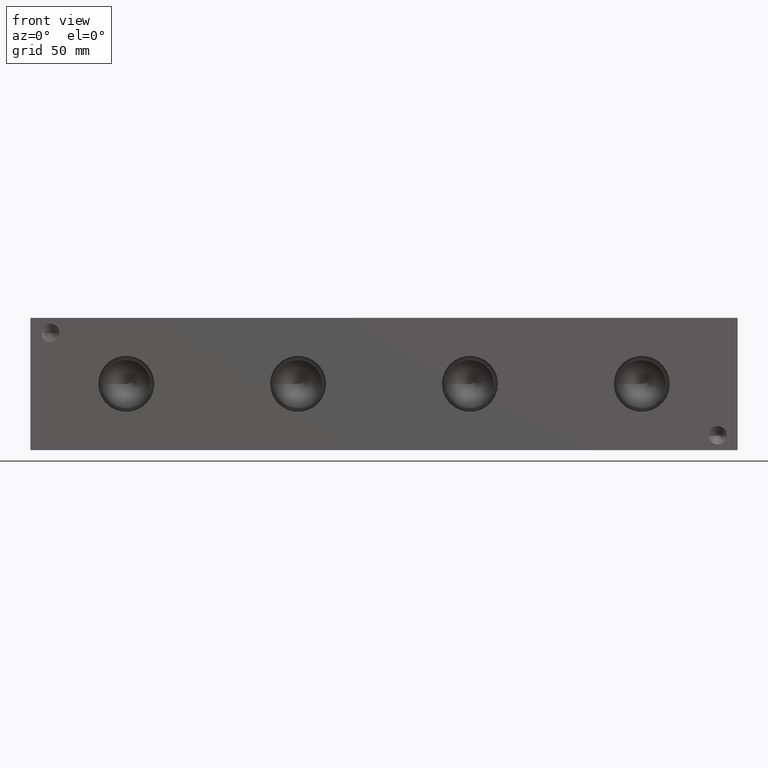
[diagram: clean part render]
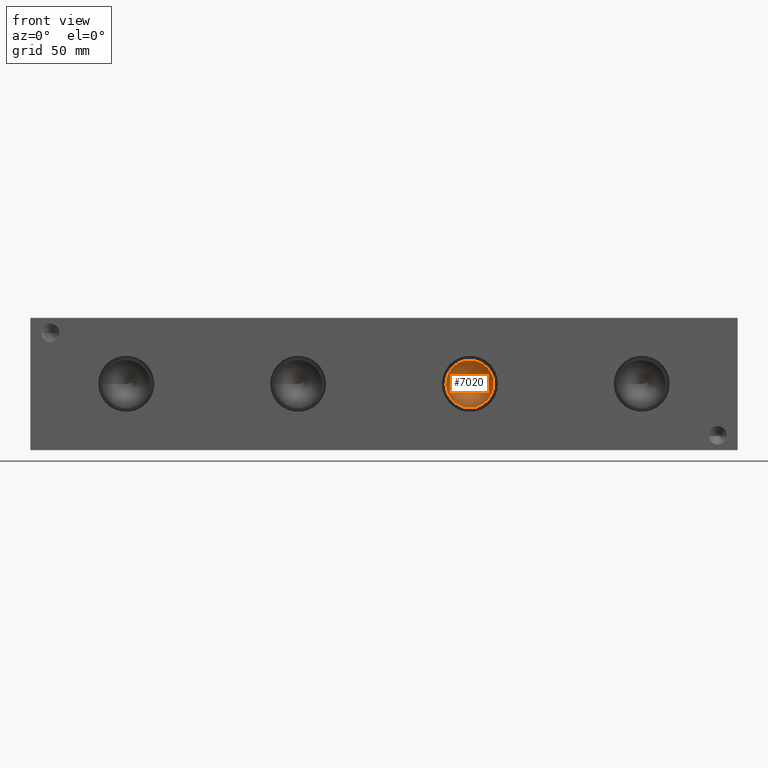
[diagram: same view with one face highlighted and labeled with its STEP entity id]
A machine part, front view. The second image highlights one B-rep face of the part: STEP entity #7020.
In plain terms, the highlighted conical surface has half-angle 60 deg.
Its self-contained STEP definition (entity closure, byte-faithful):
#38=CONICAL_SURFACE('',#7321,5.7531,1.0471975511966);
#64=CIRCLE('',#7322,11.5062);
#65=CIRCLE('',#7323,11.5062);
#731=FACE_OUTER_BOUND('',#1123,.T.);
#1123=EDGE_LOOP('',(#6078,#6079,#6080,#6081));
#1861=LINE('',#11686,#2573);
#2573=VECTOR('',#8587,5.7531);
#3353=VERTEX_POINT('',#11682);
#3354=VERTEX_POINT('',#11683);
#3355=VERTEX_POINT('',#11685);
#4289=EDGE_CURVE('',#3353,#3354,#64,.T.);
#4290=EDGE_CURVE('',#3354,#3355,#1861,.T.);
#4291=EDGE_CURVE('',#3354,#3353,#65,.T.);
#6078=ORIENTED_EDGE('',*,*,#4289,.T.);
#6079=ORIENTED_EDGE('',*,*,#4290,.T.);
#6080=ORIENTED_EDGE('',*,*,#4290,.F.);
#6081=ORIENTED_EDGE('',*,*,#4291,.T.);
#7020=ADVANCED_FACE('',(#731),#38,.F.);
#7321=AXIS2_PLACEMENT_3D('',#11681,#8583,#8584);
#7322=AXIS2_PLACEMENT_3D('',#11684,#8585,#8586);
#7323=AXIS2_PLACEMENT_3D('',#11687,#8588,#8589);
#8583=DIRECTION('center_axis',(0.,-1.,0.));
#8584=DIRECTION('ref_axis',(1.,0.,0.));
#8585=DIRECTION('center_axis',(0.,-1.,0.));
#8586=DIRECTION('ref_axis',(1.,0.,0.));
#8587=DIRECTION('',(0.866025403784439,0.5,1.06057523872491E-16));
#8588=DIRECTION('center_axis',(0.,-1.,0.));
#8589=DIRECTION('ref_axis',(1.,0.,0.));
#11681=CARTESIAN_POINT('Origin',(211.1248,19.8354638336748,31.75));
#11682=CARTESIAN_POINT('',(222.631,16.51391,31.75));
#11683=CARTESIAN_POINT('',(199.6186,16.51391,31.75));
#11684=CARTESIAN_POINT('Origin',(211.1248,16.51391,31.75));
#11685=CARTESIAN_POINT('',(211.1248,23.1570176673497,31.75));
#11686=CARTESIAN_POINT('',(205.3717,19.8354638336748,31.75));
#11687=CARTESIAN_POINT('Origin',(211.1248,16.51391,31.75));